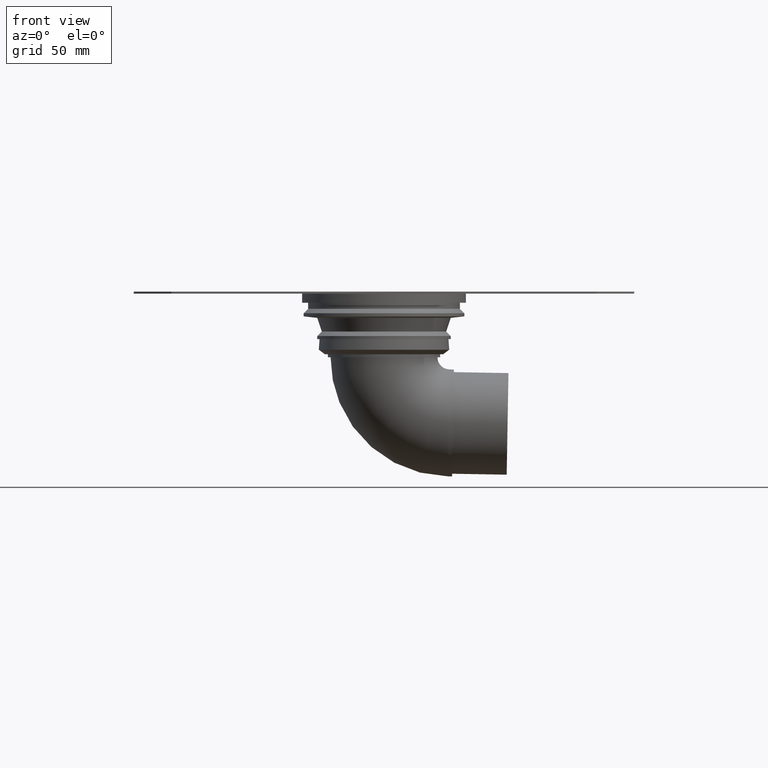
[diagram: clean part render]
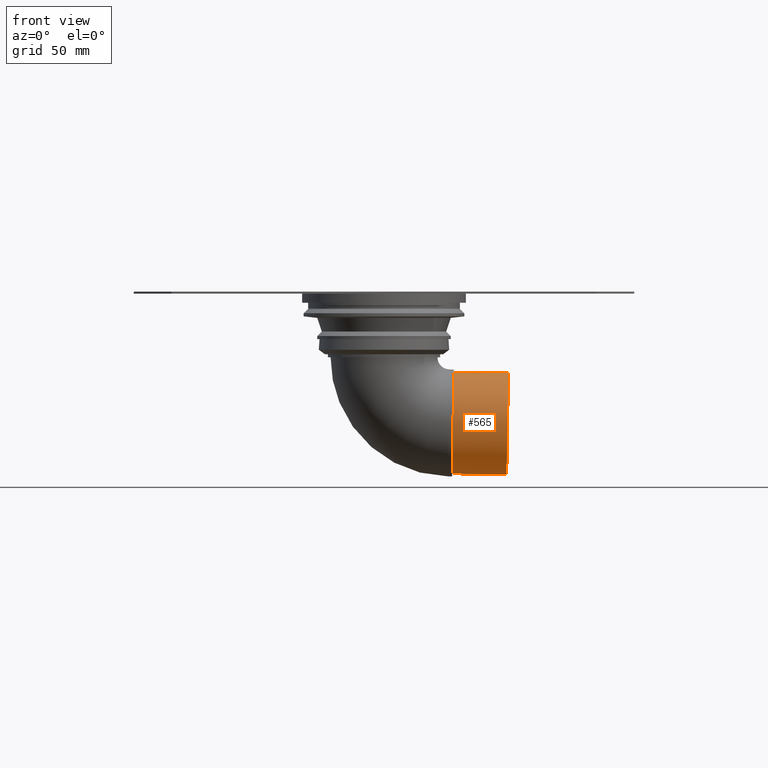
[diagram: same view with one face highlighted and labeled with its STEP entity id]
A machine part, front view. The second image highlights one B-rep face of the part: STEP entity #565.
In plain terms, the highlighted cylindrical surface (bore or boss wall) has radius 33.5 mm, axis along (-0.9998, 0, 0.0175).
Its self-contained STEP definition (entity closure, byte-faithful):
#64=CIRCLE('',#653,33.5);
#65=CIRCLE('',#655,33.5);
#75=CYLINDRICAL_SURFACE('',#654,33.5);
#179=ORIENTED_EDGE('',*,*,#249,.T.);
#180=ORIENTED_EDGE('',*,*,#248,.F.);
#248=EDGE_CURVE('',#298,#298,#64,.T.);
#249=EDGE_CURVE('',#299,#299,#65,.T.);
#298=VERTEX_POINT('',#984);
#299=VERTEX_POINT('',#987);
#420=EDGE_LOOP('',(#179));
#421=EDGE_LOOP('',(#180));
#498=FACE_BOUND('',#420,.T.);
#499=FACE_BOUND('',#421,.T.);
#565=ADVANCED_FACE('',(#498,#499),#75,.T.);
#653=AXIS2_PLACEMENT_3D('',#983,#828,#829);
#654=AXIS2_PLACEMENT_3D('',#985,#830,#831);
#655=AXIS2_PLACEMENT_3D('',#986,#832,#833);
#828=DIRECTION('',(-0.999847695156391,0.,0.0174524064372835));
#829=DIRECTION('',(0.0174524064372835,0.,0.999847695156391));
#830=DIRECTION('',(-0.999847695156391,0.,0.0174524064372835));
#831=DIRECTION('',(0.0174524064372835,0.,0.999847695156391));
#832=DIRECTION('',(-0.999847695156391,0.,0.0174524064372835));
#833=DIRECTION('',(0.0174524064372835,0.,0.999847695156391));
#983=CARTESIAN_POINT('',(45.4947265070567,0.,-85.2957700348258));
#984=CARTESIAN_POINT('',(46.0793821227057,0.,-51.8008722470867));
#985=CARTESIAN_POINT('',(42.4951834215875,0.,-85.2434128155139));
#986=CARTESIAN_POINT('',(81.4892435326867,0.,-85.924056666568));
#987=CARTESIAN_POINT('',(82.0738991483357,0.,-52.4291588788289));